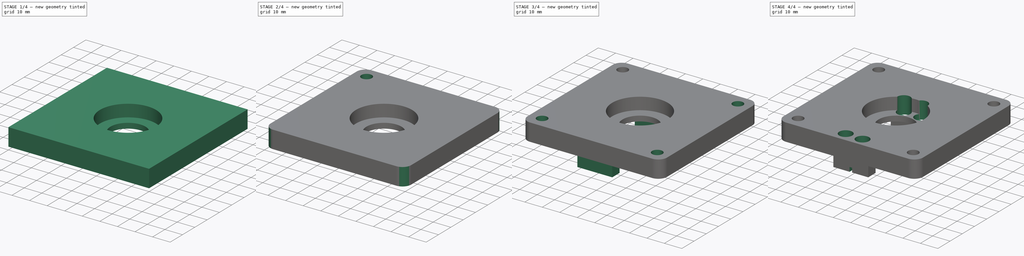
[diagram: build sequence overview — one tinted view per stage of 4, left to right]
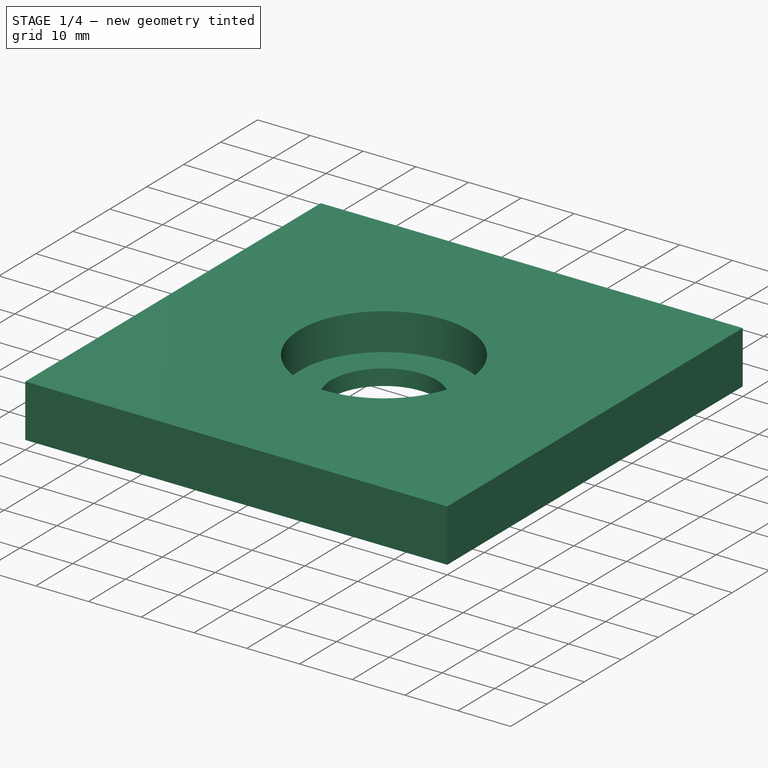
[diagram: stage 1 of 4 — iso view after this stage's code; geometry added in this stage tinted green]
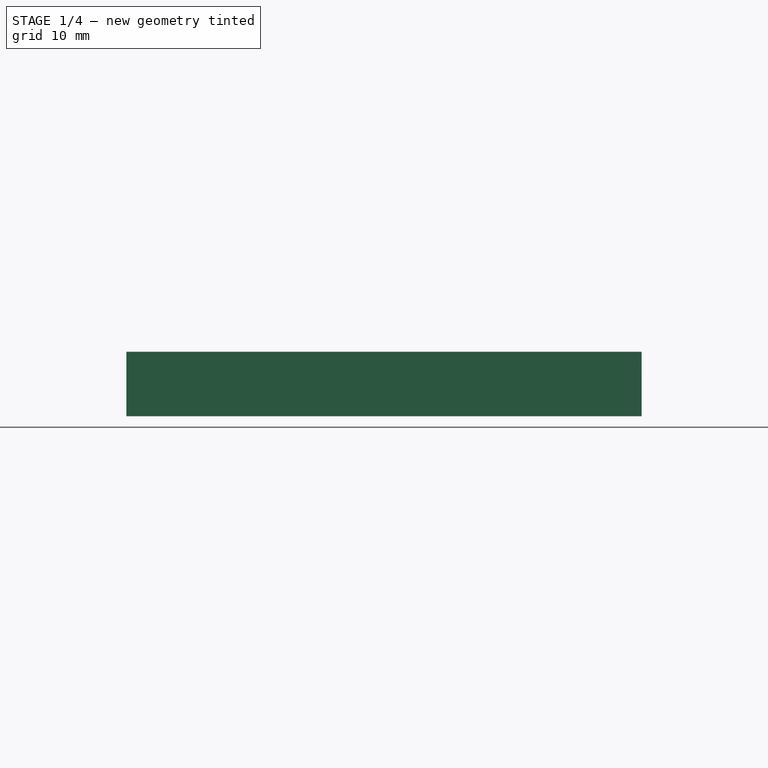
[diagram: stage 1 of 4 — front view after this stage's code; geometry added in this stage tinted green]
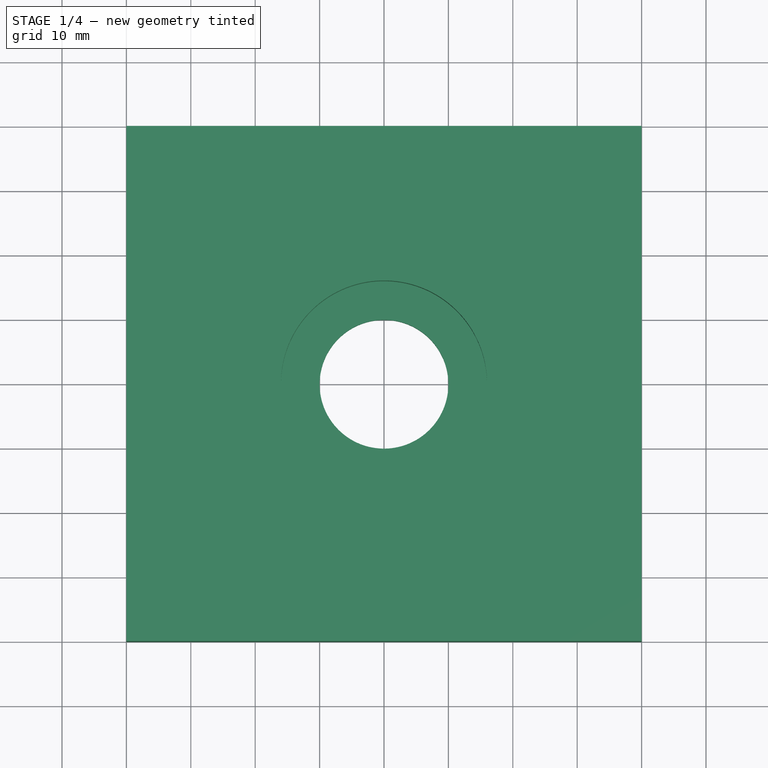
[diagram: stage 1 of 4 — top view after this stage's code; geometry added in this stage tinted green]
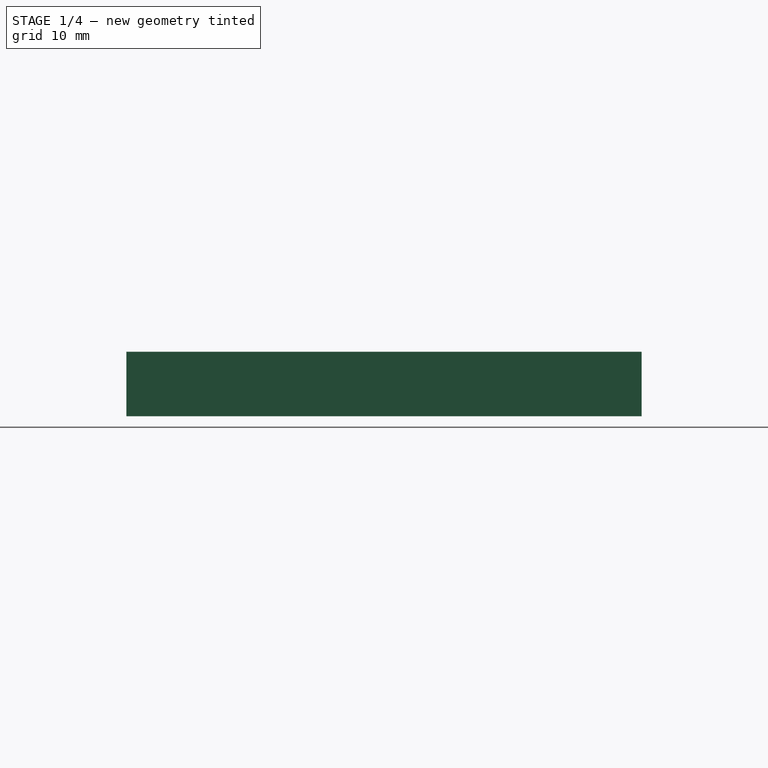
[diagram: stage 1 of 4 — right view after this stage's code; geometry added in this stage tinted green]
FCSTD DOCUMENT  (FreeCAD 2023.1102R14555 (Git shallow))
Label: Base_Plate
License: All rights reserved
LicenseURL: https://en.wikipedia.org/wiki/All_rights_reserved
objects: App::FeaturePython×10, Sketcher::SketchObject×8, PartDesign::Pocket×7, Part::FeaturePython×7, PartDesign::Pad×2, PartDesign::Mirrored×2, App::Link×2, PartDesign::Fillet×1, PartDesign::SubShapeBinder×1, Part::SubShapeBinder×1, PartDesign::Plane×1, PartDesign::Body×1, App::Part×1
note: 62 computed .brp shape members not serialized (recipe doc carries the construction recipe); baked Part::Feature solids carry a one-line shape summary decoded from their .brp
EXTERNAL_REF file=Ball_Bearing.FCStd obj=Part
EXTERNAL_REF file=Hitec_D625NW.FCStd obj=Part

FEATURE [Sketcher::SketchObject] Sketch
  ArcFitTolerance = 1e-06
  AttachmentSupport = -> [XY_Plane]
  ExternalBSplineMaxDegree = 5
  ExternalBSplineTolerance = 0.0001
  FullyConstrained = true
  InternalTolerance = 1e-06
  InvalidShape = false
  MakeInternals = false
  MapMode = 5
  Support = -> [XY_Plane]
  TreeRank = 18
  ValidateShape = false
  sketch-geometry (5):
    g0: LineSegment StartX=-40 StartY=-40 StartZ=0 EndX=-40 EndY=40 EndZ=0
    g1: LineSegment StartX=-40 StartY=40 StartZ=0 EndX=40 EndY=40 EndZ=0
    g2: LineSegment StartX=40 StartY=40 StartZ=0 EndX=40 EndY=-40 EndZ=0
    g3: LineSegment StartX=40 StartY=-40 StartZ=0 EndX=-40 EndY=-40 EndZ=0
    g4: GeomPoint [constr] X=0 Y=0 Z=0
  constraints (12):
    c: Coincident(g0,g1)
    c: Coincident(g1,g2)
    c: Coincident(g2,g3)
    c: Coincident(g3,g0)
    c: Horizontal(g1)
    c: Horizontal(g3)
    c: Vertical(g0)
    c: Vertical(g2)
    c: Symmetric(g1,g0,g4)
    c: Coincident(g4,g-1)
    c: Distance(g1) = 80
    c: Equal(g2,g1)
FEATURE [PartDesign::Pad] Pad
  AddSubType = 0
  AlongSketchNormal = false
  AutoTaperInnerAngle = true
  CheckUpToFaceLimits = true
  ClaimChildren = false
  Direction = (0,0,1)
  Fit = 0
  FitJoin = 0
  InnerFit = 0
  InnerFitJoin = 0
  InvalidShape = false
  Length = 10
  Length2 = 10
  Linearize = true
  NewSolid = false
  Profile = -> Sketch
  ReferenceAxis = -> Sketch [N_Axis]
  Refine = true
  Suppress = false
  TaperInnerAngle = 0
  TaperInnerAngleRev = 0
  TreeRank = 19
  Type = 0
  ValidateShape = true
  _ProfileBasedVersion = 1
FEATURE [Sketcher::SketchObject] Sketch001
  ArcFitTolerance = 1e-06
  AttachmentSupport = -> [Pad]
  ExternalBSplineMaxDegree = 5
  ExternalBSplineTolerance = 0.0001
  FullyConstrained = true
  InternalTolerance = 1e-06
  InvalidShape = false
  MakeInternals = false
  MapMode = 5
  Placement = pos=(0,0,10) rot=(0,0,1;0rad)
  Support = -> [Pad]
  TreeRank = 20
  ValidateShape = false
  sketch-geometry (2):
    g0: Circle CenterX=0 CenterY=0 CenterZ=0 NormalX=0 NormalY=0 NormalZ=1 AngleXU=0 Radius=10
    g1: Circle CenterX=0 CenterY=0 CenterZ=0 NormalX=0 NormalY=0 NormalZ=1 AngleXU=0 Radius=16
  constraints (4):
    c: Coincident(g0,g-1)
    c: Diameter(g0) = 20
    c: Coincident(g1,g0)
    c: Diameter(g1) = 32
FEATURE [PartDesign::Pocket] Pocket
  AddSubType = 1
  AlongSketchNormal = false
  AutoTaperInnerAngle = true
  BaseFeature = -> Pad
  CheckUpToFaceLimits = true
  ClaimChildren = false
  Direction = (0,0,-1)
  Fit = 0
  FitJoin = 0
  InnerFit = 0
  InnerFitJoin = 0
  InvalidShape = false
  Length = 7
  Length2 = 10
  Linearize = true
  NewSolid = false
  Profile = -> Sketch001 [Edge2]
  ReferenceAxis = -> Sketch001 [N_Axis]
  Refine = true
  Suppress = false
  TaperInnerAngle = 0
  TaperInnerAngleRev = 0
  TreeRank = 21
  Type = 0
  ValidateShape = true
  _ProfileBasedVersion = 1
  _Version = 1
FEATURE [PartDesign::Pocket] Pocket001
  AddSubType = 1
  AlongSketchNormal = false
  AutoTaperInnerAngle = true
  BaseFeature = -> Pocket
  CheckUpToFaceLimits = true
  ClaimChildren = false
  Direction = (0,0,-1)
  Fit = 0
  FitJoin = 0
  InnerFit = 0
  InnerFitJoin = 0
  InvalidShape = false
  Length = 5
  Length2 = 10
  Linearize = true
  NewSolid = false
  Profile = -> Sketch001 [Edge1]
  ReferenceAxis = -> Sketch001 [N_Axis]
  Refine = true
  Suppress = false
  TaperInnerAngle = 0
  TaperInnerAngleRev = 0
  TreeRank = 22
  Type = 1
  ValidateShape = true
  _ProfileBasedVersion = 1
  _Version = 1
FEATURE [Sketcher::SketchObject] Sketch002
  ArcFitTolerance = 0
  AttachmentSupport = -> [XY_Plane]
  ExternalBSplineMaxDegree = 0
  ExternalBSplineTolerance = 0
  ExternalGeometry = -> [Pad001]
  FullyConstrained = true
  InternalTolerance = 1e-06
  InvalidShape = false
  MakeInternals = false
  MapMode = 5
  Support = -> [XY_Plane]
  TreeRank = 0
  ValidateShape = false
  sketch-geometry (2):
    g0: Circle CenterX=0 CenterY=0 CenterZ=0 NormalX=0 NormalY=0 NormalZ=1 AngleXU=0 Radius=12
    g1: Circle CenterX=0 CenterY=0 CenterZ=0 NormalX=0 NormalY=0 NormalZ=1 AngleXU=0 Radius=10
  constraints (4):
    c: Coincident(g0,g-1)
    c: Equal(g0,g-3)
    c: Diameter(g1) = 20
    c: Coincident(g1,g0)
FEATURE [PartDesign::Pad] Pad002
  AddSubType = 0
  AutoTaperInnerAngle = true
  BaseFeature = -> Pad001
  CheckUpToFaceLimits = true
  ClaimChildren = false
  Direction = (0,0,1)
  Fit = 0
  FitJoin = 0
  InnerFit = 0
  InnerFitJoin = 0
  InvalidShape = false
  Length = 7
  Length2 = 10
  Midplane = true
  NewSolid = false
  Profile = -> Sketch002
  ReferenceAxis = -> Sketch002 [N_Axis]
  Suppress = false
  TaperInnerAngle = 0
  TaperInnerAngleRev = 0
  TreeRank = 0
  Type = 0
  ValidateShape = true
  _ProfileBasedVersion = 0
FEATURE [PartDesign::Body] Body
  AutoGroupSolids = false
  ClaimAllChildren = false
  ExportMode = 0
  Group = -> [Sketch,Pad,Sketch001,Pad001,Sketch002,Pad002]
  InvalidShape = false
  Origin = -> Origin
  Tip = -> Pad002
  TreeRank = 0
  ValidateShape = false
  _ExportChildren = -> [Pad,Pad001,Pad002]
  _GroupVersion = 1
FEATURE [App::Part] Part  label="Ball_Bearing"
  ClaimAllChildren = false
  ColoredElements = -> Part [Body.Pad002.Face6,Body.Pad002.Face7]
  ExportMode = 1
  Group = -> [Body]
  Origin = -> Origin001
  TreeRank = 3
  _ExportChildren = -> [Body]
  _GroupVersion = 1
---- part Hitec_D625NW.FCStd = doc fcstd_f27333ed1394 ----
FCSTD DOCUMENT  (FreeCAD 2023.1102R14555 (Git shallow))
Label: Hitec_D625NW
License: All rights reserved
LicenseURL: http://en.wikipedia.org/wiki/All_rights_reserved
objects: Sketcher::SketchObject×3, Part::SubShapeBinder×3, PartDesign::Body×2, PartDesign::SubShapeBinder×1, PartDesign::Pad×1, PartDesign::Hole×1, Part::Feature×1, App::Part×1, PartDesign::Plane×1
note: 20 computed .brp shape members not serialized (recipe doc carries the construction recipe); baked Part::Feature solids carry a one-line shape summary decoded from their .brp

FEATURE [PartDesign::SubShapeBinder] Binder
  BindCopyOnChange = 0
  BindMode = 0
  ClaimChildren = false
  Context = -> Part [Body.Binder.]
  EdgeTolerance = 1e-06
  FillStyle = 0
  Fuse = false
  InvalidShape = false
  MakeFace = true
  MergeEdges = true
  OffsetFill = false
  OffsetIntersection = false
  OffsetJoinType = 0
  OffsetOpenResult = false
  Outline = false
  PartialLoad = false
  Relative = true
  SplitEdges = false
  TightBound = false
  TreeRank = 0
  ValidateShape = false
  _Version = 2
FEATURE [Sketcher::SketchObject] Sketch
  ArcFitTolerance = 0
  AttachmentSupport = -> [Binder]
  ExternalBSplineMaxDegree = 0
  ExternalBSplineTolerance = 0
  ExternalGeometry = -> [Binder]
  FullyConstrained = true
  InternalTolerance = 1e-06
  InvalidShape = false
  MakeInternals = false
  MapMode = 5
  Placement = pos=(0,0,40.55) rot=(0,0,1;0rad)
  Support = -> [Binder]
  TreeRank = 0
  ValidateShape = false
  sketch-geometry (1):
    g0: Circle CenterX=9.5 CenterY=10 CenterZ=0 NormalX=0 NormalY=0 NormalZ=1 AngleXU=0 Radius=2.975
  constraints (2):
    c: Coincident(g0,g-3)
    c: Diameter(g0) = 5.95
FEATURE [PartDesign::Pad] Pad
  AddSubType = 0
  AutoTaperInnerAngle = true
  CheckUpToFaceLimits = true
  ClaimChildren = false
  Direction = (0,0,1)
  Fit = 0
  FitJoin = 0
  InnerFit = 0
  InnerFitJoin = 0
  InvalidShape = false
  Length = 4
  Length2 = 10
  NewSolid = false
  Profile = -> Sketch
  ReferenceAxis = -> Sketch [N_Axis]
  Suppress = false
  TaperInnerAngle = 0
  TaperInnerAngleRev = 0
  TreeRank = 0
  Type = 0
  ValidateShape = true
  _ProfileBasedVersion = 0
FEATURE [PartDesign::Hole] Hole
  AddSubType = 1
  BaseFeature = -> Pad
  ClaimChildren = false
  CustomThreadClearance = 0
  Depth = 18.7875
  DepthType = 0
  Diameter = 3.4
  DrillForDepth = false
  DrillPoint = 1
  DrillPointAngle = 118
  Fit = 0
  FitJoin = 0
  HoleCutCountersinkAngle = 90
  HoleCutCustomValues = false
  HoleCutDepth = 0
  HoleCutDiameter = 6.1
  HoleCutType = 0
  InnerFit = 0
  InnerFitJoin = 0
  InvalidShape = false
  ModelThread = false
  NewSolid = false
  Profile = -> Pad [Face3]
  Suppress = false
  Tapered = false
  TaperedAngle = 90
  ThreadClass = 0
  ThreadDepth = 18.7875
  ThreadDepthType = 0
  ThreadDirection = 0
  ThreadFit = 0
  ThreadSize = 9
  ThreadType = 1
  Threaded = false
  TreeRank = 0
  UseCustomThreadClearance = false
  ValidateShape = true
  _ProfileBasedVersion = 0
FEATURE [PartDesign::Body] Body  label="Root_Gear"
  AutoGroupSolids = false
  ClaimAllChildren = false
  ExportMode = 0
  Group = -> [Binder,Sketch,Pad,Hole]
  InvalidShape = false
  Origin = -> Origin
  Tip = -> Hole
  TreeRank = 80
  ValidateShape = false
  _ExportChildren = -> [Binder,Pad,Hole]
  _GroupVersion = 1
FEATURE [Part::Feature] ShapeCopy  label="Hitec_D625MW001"
  ColoredElements = -> ShapeCopy [Face63,Face64,Face65,Face67,Face68,Face69]
  InvalidShape = false
  TreeRank = 228
  ValidateShape = false
  shape: bbox 53 x 20 x 40.55 mm, 71 faces (baked)
FEATURE [App::Part] Part  label="Hitec_D625NW"
  ClaimAllChildren = false
  ExportMode = 1
  Group = -> [ShapeCopy,Body]
  Origin = -> Origin001
  TreeRank = 81
  _ExportChildren = -> [ShapeCopy,Body]
  _GroupVersion = 1
FEATURE [Part::SubShapeBinder] Import  label="Import(Hitec_D625MW001)"
  BindCopyOnChange = 0
  BindMode = 0
  ClaimChildren = false
  EdgeTolerance = 1e-06
  FillStyle = 0
  Fuse = false
  InvalidShape = false
  MakeFace = false
  MergeEdges = true
  OffsetFill = false
  OffsetIntersection = false
  OffsetJoinType = 0
  OffsetOpenResult = false
  Outline = false
  PartialLoad = false
  Relative = true
  SplitEdges = false
  Support = -> [Part[ShapeCopy.]]
  TightBound = false
  TreeRank = 234
  ValidateShape = false
  _Version = 8
FEATURE [PartDesign::Plane] DatumPlane
  AttachmentSupport = -> [Import]
  InvalidShape = false
  Length = 50
  MapMode = 5
  MinimumLength = 10
  MinimumWidth = 10
  Placement = pos=(0,0,28) rot=(1,0,0;3.14159rad)
  ResizeMode = 0
  Support = -> [Import]
  TreeRank = 233
  ValidateShape = false
  Width = 50
FEATURE [Part::SubShapeBinder] Import001  label="Import001(DatumPlane)"
  BindCopyOnChange = 0
  BindMode = 0
  ClaimChildren = false
  Context = -> Body001 [Import001.]
  EdgeTolerance = 1e-06
  FillStyle = 0
  Fuse = false
  InvalidShape = false
  MakeFace = false
  MergeEdges = true
  OffsetFill = false
  OffsetIntersection = false
  OffsetJoinType = 0
  OffsetOpenResult = false
  Outline = false
  PartialLoad = false
  Relative = true
  SplitEdges = false
  Support = -> [DatumPlane]
  TightBound = false
  TreeRank = 249
  ValidateShape = false
  _Version = 8
FEATURE [Part::SubShapeBinder] Import002  label="Import002(Hitec_D625MW001)"
  BindCopyOnChange = 0
  BindMode = 0
  ClaimChildren = false
  Context = -> Body001 [Import002.]
  EdgeTolerance = 1e-06
  FillStyle = 0
  Fuse = false
  InvalidShape = false
  MakeFace = false
  MergeEdges = true
  OffsetFill = false
  OffsetIntersection = false
  OffsetJoinType = 0
  OffsetOpenResult = false
  Outline = false
  PartialLoad = false
  Relative = true
  SplitEdges = false
  Support = -> [Part[ShapeCopy.]]
  TightBound = false
  TreeRank = 251
  ValidateShape = false
  _Version = 8
FEATURE [Sketcher::SketchObject] Sketch001
  ArcFitTolerance = 1e-06
  AttachmentSupport = -> [Import001]
  ExternalBSplineMaxDegree = 5
  ExternalBSplineTolerance = 0.0001
  ExternalGeometry = -> [Import002]
  FullyConstrained = true
  InternalTolerance = 1e-06
  InvalidShape = false
  MakeInternals = false
  MapMode = 5
  Placement = pos=(0,0,28) rot=(1,0,0;3.14159rad)
  Support = -> [Import001]
  TreeRank = 250
  ValidateShape = false
  constraints (2):
    c: Distance(g-3,g-4) = 10
    c: Distance(g-5,g-6) = 20
FEATURE [Sketcher::SketchObject] Sketch002
  ArcFitTolerance = 1e-06
  AttachmentSupport = -> [XZ_Plane001]
  ExternalBSplineMaxDegree = 5
  ExternalBSplineTolerance = 0.0001
  ExternalGeometry = -> [Import002]
  FullyConstrained = true
  InternalTolerance = 1e-06
  InvalidShape = false
  MakeInternals = false
  MapMode = 5
  Placement = pos=(0,0,0) rot=(1,0,0;1.5708rad)
  Support = -> [XZ_Plane001]
  TreeRank = 252
  ValidateShape = false
  constraints (1):
    c: DistanceY(g-4,g-3) = 38
FEATURE [PartDesign::Body] Body001
  AutoGroupSolids = false
  ClaimAllChildren = false
  ExportMode = 0
  Group = -> [Import001,Sketch001,Import002,Sketch002]
  InvalidShape = false
  Origin = -> Origin002
  TreeRank = 246
  ValidateShape = false
  _ExportChildren = -> [Import001,Sketch001,Import002,Sketch002]
  _GroupVersion = 1
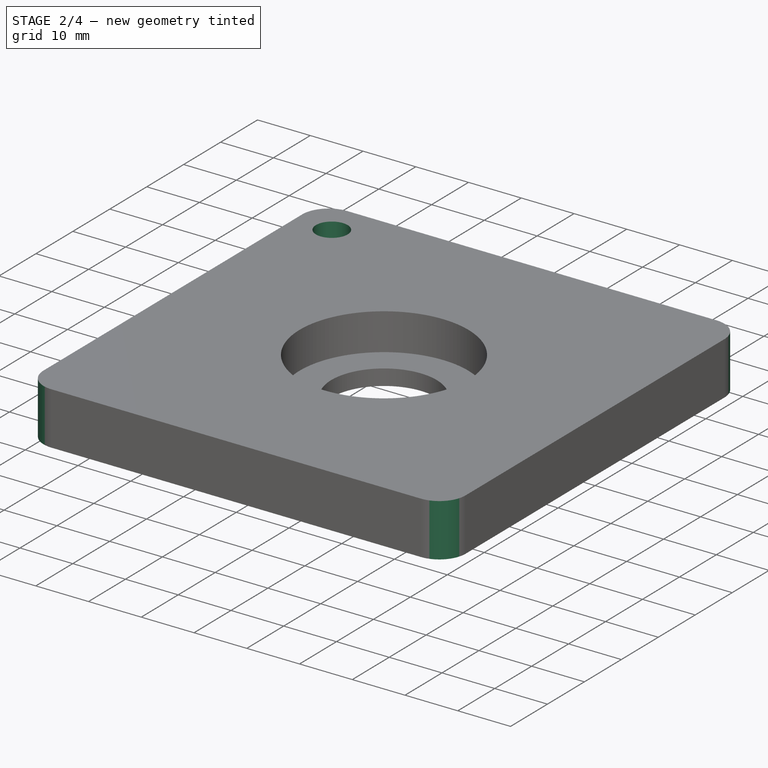
[diagram: stage 2 of 4 — iso view after this stage's code; geometry added in this stage tinted green]
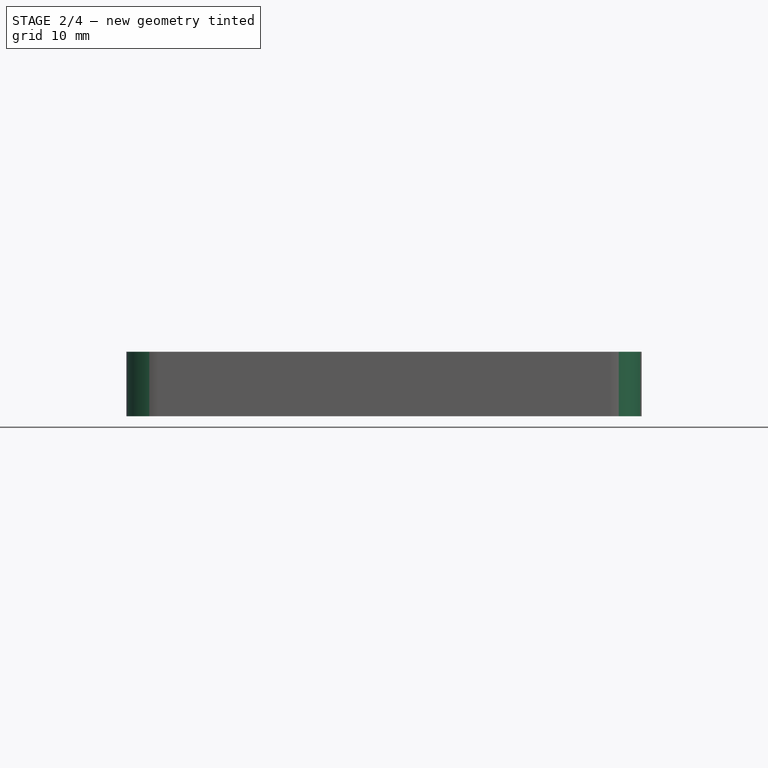
[diagram: stage 2 of 4 — front view after this stage's code; geometry added in this stage tinted green]
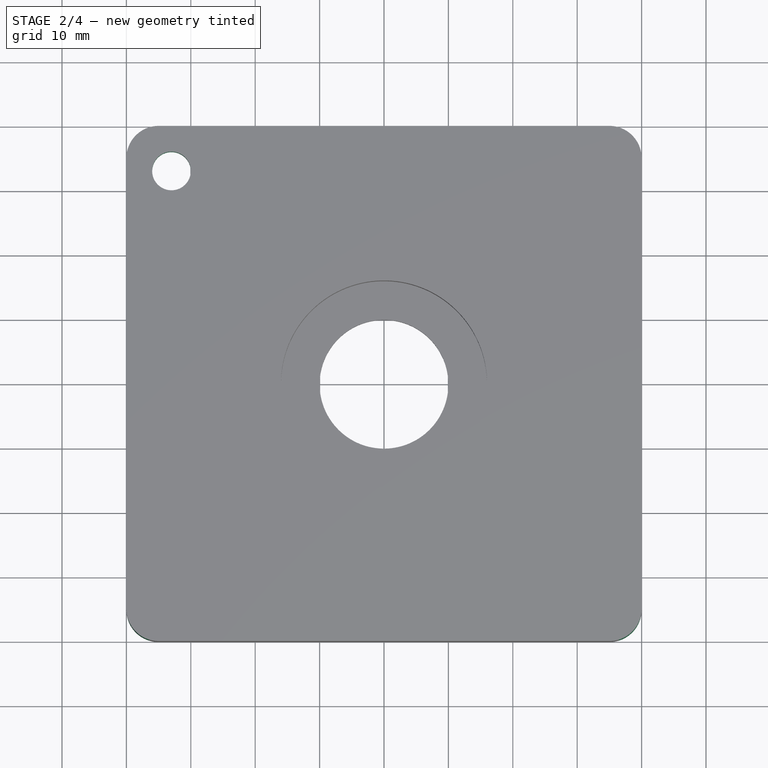
[diagram: stage 2 of 4 — top view after this stage's code; geometry added in this stage tinted green]
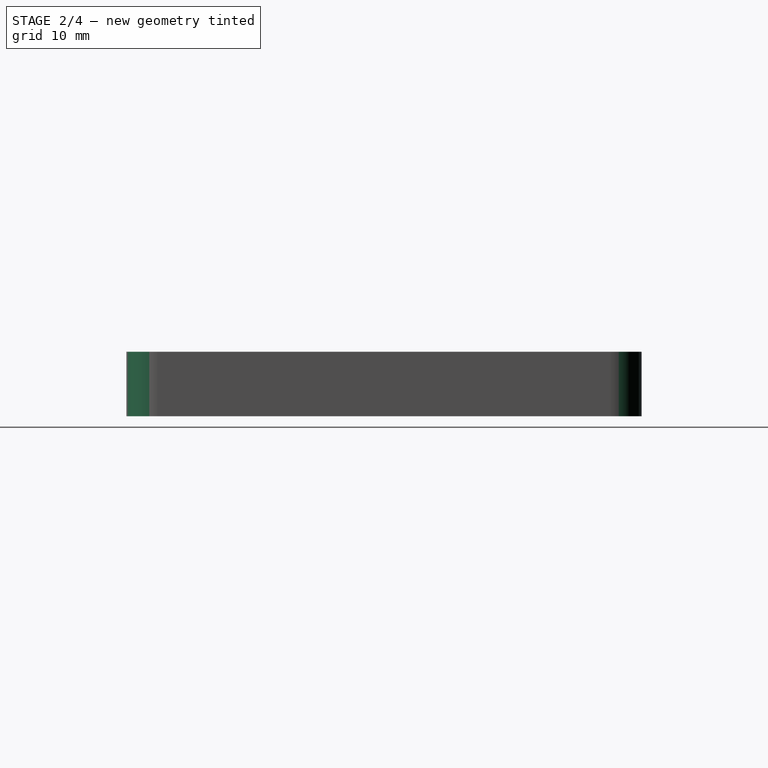
[diagram: stage 2 of 4 — right view after this stage's code; geometry added in this stage tinted green]
FEATURE [PartDesign::Fillet] Fillet
  AddSubType = 0
  Base = -> Pocket001 [Edge1,Edge5,Edge8,Edge2]
  BaseFeature = -> Pocket001
  InvalidShape = false
  NewSolid = false
  Radius = 5
  Refine = true
  SupportTransform = false
  Suppress = false
  TreeRank = 23
  UseAllEdges = false
  ValidateShape = true
FEATURE [Sketcher::SketchObject] Sketch002
  ArcFitTolerance = 1e-06
  AttachmentSupport = -> [Fillet]
  ExternalBSplineMaxDegree = 5
  ExternalBSplineTolerance = 0.0001
  ExternalGeometry = -> [Fillet]
  FullyConstrained = true
  InternalTolerance = 1e-06
  InvalidShape = false
  MakeInternals = false
  MapMode = 5
  Placement = pos=(0,0,10) rot=(0,0,1;0rad)
  Support = -> [Fillet]
  TreeRank = 24
  ValidateShape = false
  sketch-geometry (3):
    g0: Circle CenterX=-33 CenterY=33 CenterZ=0 NormalX=0 NormalY=0 NormalZ=1 AngleXU=0 Radius=3
    g1: LineSegment [constr] StartX=-33 StartY=33 StartZ=0 EndX=-33 EndY=40 EndZ=0
    g2: LineSegment [constr] StartX=-33 StartY=33 StartZ=0 EndX=-40 EndY=33 EndZ=0
  constraints (9):
    c: Diameter(g0) = 6
    c: Coincident(g1,g0)
    c: PointOnObject(g1,g-4)
    c: Vertical(g1)
    c: Coincident(g2,g0)
    c: PointOnObject(g2,g-3)
    c: Horizontal(g2)
    c: Equal(g2,g1)
    c: Distance(g1) = 7
FEATURE [PartDesign::Pocket] Pocket002
  AddSubType = 1
  AlongSketchNormal = false
  AutoTaperInnerAngle = true
  BaseFeature = -> Fillet
  CheckUpToFaceLimits = true
  ClaimChildren = false
  Direction = (0,0,-1)
  Fit = 0
  FitJoin = 0
  InnerFit = 0
  InnerFitJoin = 0
  InvalidShape = false
  Length = 5
  Length2 = 10
  Linearize = true
  NewSolid = false
  Profile = -> Sketch002 [Edge1]
  ReferenceAxis = -> Sketch002 [N_Axis]
  Refine = true
  Suppress = false
  TaperInnerAngle = 0
  TaperInnerAngleRev = 0
  TreeRank = 25
  Type = 1
  ValidateShape = true
  _ProfileBasedVersion = 1
  _Version = 1
FEATURE [Sketcher::SketchObject] Sketch003
  ArcFitTolerance = 1e-06
  AttachmentSupport = -> [Pocket002]
  ExternalBSplineMaxDegree = 5
  ExternalBSplineTolerance = 0.0001
  ExternalGeometry = -> [Pocket002]
  FullyConstrained = true
  InternalTolerance = 1e-06
  InvalidShape = false
  MakeInternals = false
  MapMode = 5
  Placement = pos=(0,0,0) rot=(1,0,0;3.14159rad)
  Support = -> [Pocket002]
  TreeRank = 26
  ValidateShape = false
  sketch-geometry (7):
    g0: LineSegment StartX=-30.5 StartY=-28.6699 StartZ=0 EndX=-35.5 EndY=-28.6699 EndZ=0
    g1: LineSegment StartX=-35.5 StartY=-28.6699 StartZ=0 EndX=-38 EndY=-33 EndZ=0
    g2: LineSegment StartX=-38 StartY=-33 StartZ=0 EndX=-35.5 EndY=-37.3301 EndZ=0
    g3: LineSegment StartX=-35.5 StartY=-37.3301 StartZ=0 EndX=-30.5 EndY=-37.3301 EndZ=0
    g4: LineSegment StartX=-30.5 StartY=-37.3301 StartZ=0 EndX=-28 EndY=-33 EndZ=0
    g5: LineSegment StartX=-28 StartY=-33 StartZ=0 EndX=-30.5 EndY=-28.6699 EndZ=0
    g6: Circle [constr] CenterX=-33 CenterY=-33 CenterZ=0 NormalX=0 NormalY=0 NormalZ=1 AngleXU=0 Radius=5
  constraints (16):
    c: Coincident(g0,g1)
    c: Coincident(g1,g2)
    c: Coincident(g2,g3)
    c: Coincident(g3,g4)
    c: Coincident(g4,g5)
    c: Coincident(g5,g0)
    c: Equal(g0, g1-g5) x5
    c: PointOnObject(g0,g6)
    c: PointOnObject(g1,g6)
    c: PointOnObject(g2,g6)
    c: PointOnObject(g3,g6)
    c: PointOnObject(g4,g6)
    c: PointOnObject(g5,g6)
    c: Coincident(g6,g-3)
    c: Horizontal(g0)
    c: Diameter(g6) = 10
FEATURE [PartDesign::Pocket] Pocket003
  AddSubType = 1
  AlongSketchNormal = false
  AutoTaperInnerAngle = true
  BaseFeature = -> Pocket002
  CheckUpToFaceLimits = true
  ClaimChildren = false
  Direction = (0,0,1)
  Fit = 0
  FitJoin = 0
  InnerFit = 0
  InnerFitJoin = 0
  InvalidShape = false
  Length = 5
  Length2 = 10
  Linearize = true
  NewSolid = false
  Profile = -> Sketch003
  ReferenceAxis = -> Sketch003 [N_Axis]
  Refine = true
  Suppress = false
  TaperInnerAngle = 0
  TaperInnerAngleRev = 0
  TreeRank = 27
  Type = 0
  ValidateShape = true
  _ProfileBasedVersion = 1
  _Version = 1
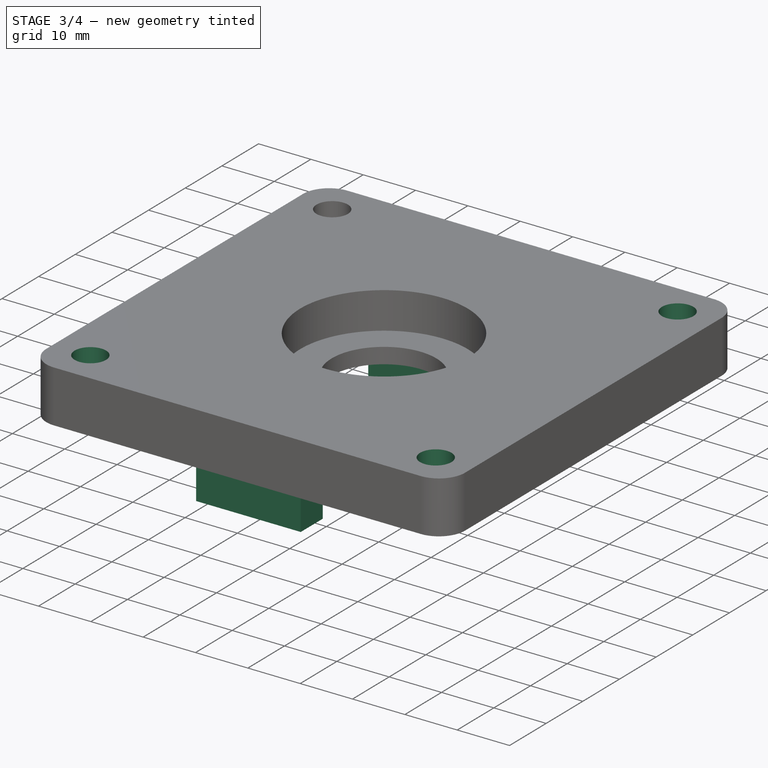
[diagram: stage 3 of 4 — iso view after this stage's code; geometry added in this stage tinted green]
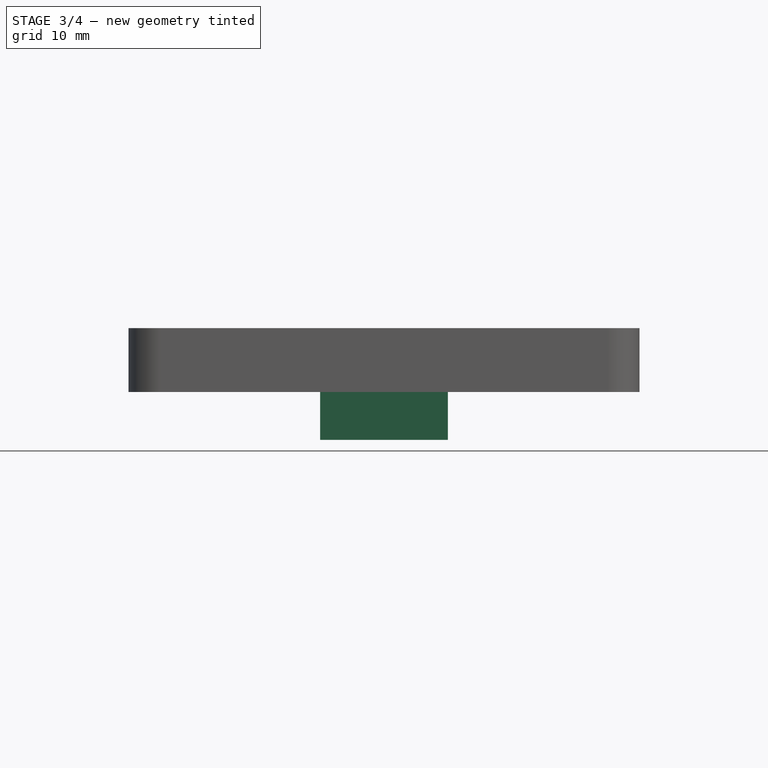
[diagram: stage 3 of 4 — front view after this stage's code; geometry added in this stage tinted green]
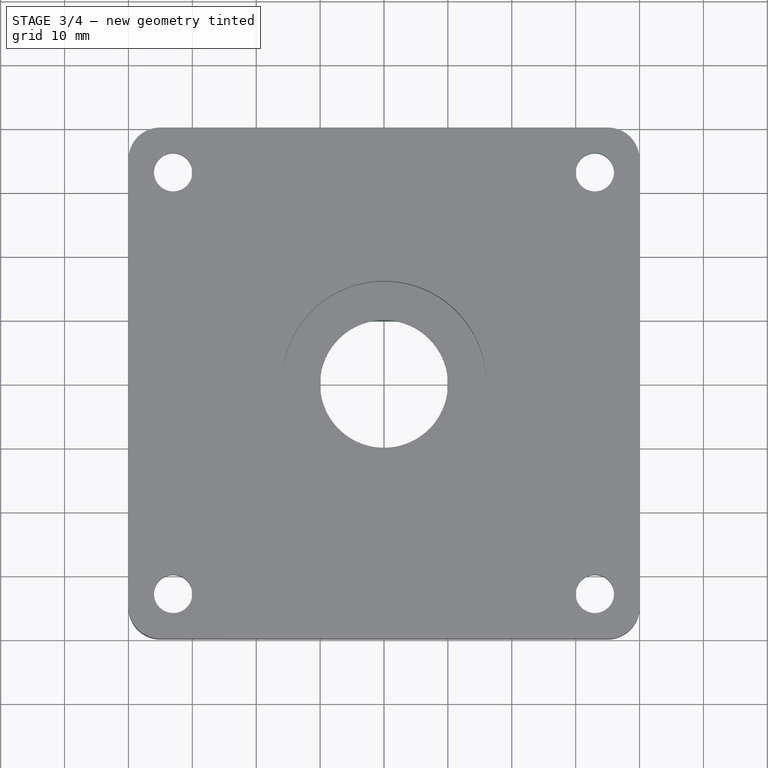
[diagram: stage 3 of 4 — top view after this stage's code; geometry added in this stage tinted green]
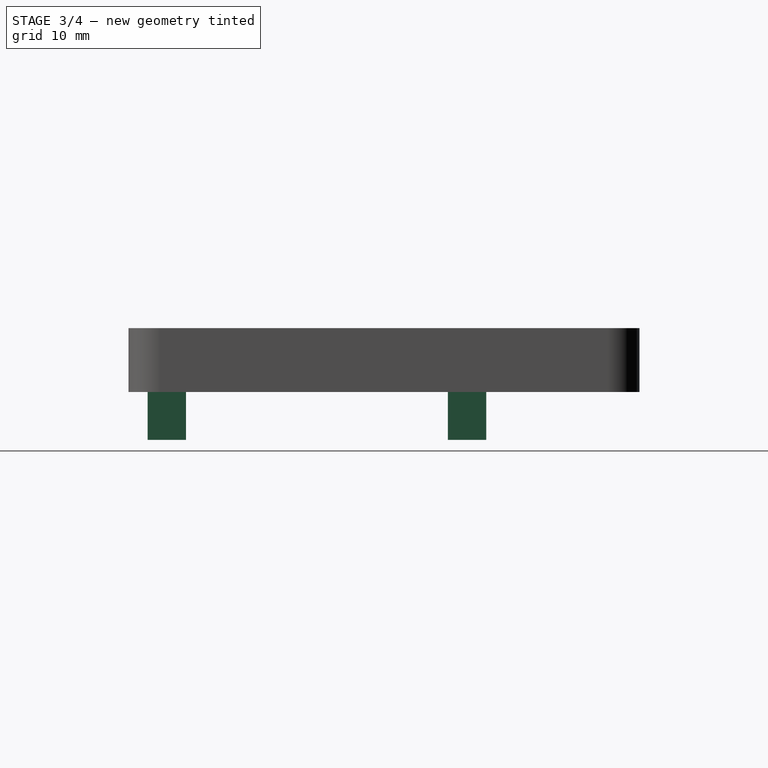
[diagram: stage 3 of 4 — right view after this stage's code; geometry added in this stage tinted green]
FEATURE [PartDesign::Mirrored] Mirrored
  AddSubType = 0
  BaseFeature = -> Pocket003
  CopyShape = false
  InvalidShape = false
  MirrorPlane = -> Sketch003 [V_Axis]
  NewSolid = false
  OriginalSubs = -> [Pocket003,Pocket002]
  Originals = -> [Pocket003,Pocket002]
  ParallelTransform = true
  Refine = true
  SubTransform = true
  Suppress = false
  TreeRank = 28
  ValidateShape = true
  _Version = 3
FEATURE [PartDesign::Mirrored] Mirrored001
  AddSubType = 0
  BaseFeature = -> Mirrored
  CopyShape = false
  InvalidShape = false
  MirrorPlane = -> XZ_Plane
  NewSolid = false
  OriginalSubs = -> [Mirrored,Pocket003,Pocket002]
  Originals = -> [Mirrored,Pocket003,Pocket002]
  ParallelTransform = true
  Refine = true
  SubTransform = true
  Suppress = false
  TreeRank = 29
  ValidateShape = true
  _Version = 3
FEATURE [PartDesign::Body] Body
  AutoGroupSolids = false
  ClaimAllChildren = false
  ExportMode = 0
  Group = -> [Sketch,Pad,Sketch001,Pocket,Pocket001,Fillet,Sketch002,Pocket002,Sketch003,Pocket003,Mirrored,Mirrored001,Sketch004,Import,Pad001,DatumPlane,Sketch005,Pocket004,Sketch006,Pocket005,Sketch007,Pocket006]
  InvalidShape = false
  Origin = -> Origin001
  Tip = -> Pocket006
  TreeRank = 17
  ValidateShape = false
  _ExportChildren = -> [Pad,Pocket,Pocket001,Fillet,Pocket002,Pocket003,Mirrored,Mirrored001,Import,Pad001,DatumPlane,Pocket004,Pocket005,Pocket006]
  _GroupVersion = 1
FEATURE [App::Part] Part  label="Base_Plate"
  ClaimAllChildren = false
  ExportMode = 1
  Group = -> [Body]
  Origin = -> Origin
  TreeRank = 35
  _ExportChildren = -> [Body]
  _GroupVersion = 1
FEATURE [Part::FeaturePython] Parts  # WARN: FeaturePython — macro-defined, semantics opaque (R4)
  Group = -> [Link001,Link002,Part]
  GroupMode = 0
  InvalidShape = false
  TreeRank = 39
  ValidateShape = false
  _LinkVersion = 1
FEATURE [Part::FeaturePython] Assembly  # WARN: FeaturePython — macro-defined, semantics opaque (R4)
  AutoRelax = true
  BuildShape = 0
  Freeze = false
  Group = -> [Constraints,Elements,Parts]
  InvalidShape = false
  TreeRank = 40
  ValidateShape = false
  Verbose = false
  _LinkVersion = 1
  _SolverType = 1
  _Version = 1
FEATURE [App::FeaturePython] Constraints  # WARN: FeaturePython — macro-defined, semantics opaque (R4)
  Group = -> [Constraint,Constraint001,Constraint002]
  TreeRank = 37
  _LinkVersion = 1
  _Version = 1
FEATURE [App::FeaturePython] Elements  # WARN: FeaturePython — macro-defined, semantics opaque (R4)
  Group = -> [_Element,_Element001,_Element002,_Element003,_Element004]
  TreeRank = 38
  _LinkVersion = 1
FEATURE [App::FeaturePython] Constraint  label="Locked"  # WARN: FeaturePython — macro-defined, semantics opaque (R4)
  Disabled = false
  Group = -> [ElementLink]
  TreeRank = 47
  _ConstraintType = 0
  _LinkVersion = 1
  _Parent = -> Constraints
FEATURE [App::FeaturePython] ElementLink  label="_Element"  # link proxy (typed FeaturePython)
  LinkTransform = true
  LinkedObject = -> _Element
  TreeRank = 45
  _LinkVersion = 1
  _Parent = -> Constraint
FEATURE [Part::FeaturePython] _Element  # link proxy (typed FeaturePython)
  Detach = false
  InvalidShape = false
  LinkTransform = true
  LinkedObject = -> Part [Body.Mirrored001.Face2]
  TreeRank = 48
  ValidateShape = false
  _LinkVersion = 1
  _Parent = -> Elements
FEATURE [App::FeaturePython] Constraint001  label="Attachment"  # WARN: FeaturePython — macro-defined, semantics opaque (R4)
  Cascade = false
  Disabled = false
  Group = -> [ElementLink001,ElementLink002]
  Multiply = false
  TreeRank = 54
  _ConstraintType = 45
  _LinkVersion = 1
  _Parent = -> Constraints
FEATURE [App::FeaturePython] ElementLink001  label="_Element001"  # link proxy (typed FeaturePython)
  LinkTransform = true
  LinkedObject = -> _Element001
  TreeRank = 50
  _LinkVersion = 1
  _Parent = -> Constraint001
FEATURE [Part::FeaturePython] _Element001  # link proxy (typed FeaturePython)
  Detach = false
  InvalidShape = false
  LinkTransform = true
  LinkedObject = -> Part [Body.Mirrored001.Face44]
  TreeRank = 55
  ValidateShape = false
  _LinkVersion = 1
  _Parent = -> Elements
FEATURE [App::FeaturePython] ElementLink002  label="_Element002"  # link proxy (typed FeaturePython)
  LinkTransform = true
  LinkedObject = -> _Element002
  TreeRank = 52
  _LinkVersion = 1
  _Parent = -> Constraint001
FEATURE [Part::FeaturePython] _Element002  # link proxy (typed FeaturePython)
  Detach = false
  InvalidShape = false
  LinkTransform = true
  LinkedObject = -> Link001 [Body.Pad002.Face2]
  TreeRank = 56
  ValidateShape = false
  _LinkVersion = 1
  _Parent = -> Elements
FEATURE [App::FeaturePython] Constraint002  label="PlaneCoincident"  # WARN: FeaturePython — macro-defined, semantics opaque (R4)
  Angle = 0
  AnglePitch = 0
  AngleRoll = 0
  Cascade = false
  Disabled = false
  Group = -> [ElementLink003,ElementLink004]
  LockAngle = true
  Multiply = false
  OffsetX = 0
  OffsetY = 0
  TreeRank = 62
  _ConstraintType = 35
  _LinkVersion = 1
  _Parent = -> Constraints
FEATURE [App::FeaturePython] ElementLink003  label="_Element003"  # link proxy (typed FeaturePython)
  LinkTransform = true
  LinkedObject = -> _Element003
  TreeRank = 58
  _LinkVersion = 1
  _Parent = -> Constraint002
FEATURE [Part::FeaturePython] _Element003  # link proxy (typed FeaturePython)
  Detach = false
  InvalidShape = false
  LinkTransform = true
  LinkedObject = -> Link002 [ShapeCopy.Edge152]
  TreeRank = 63
  ValidateShape = false
  _LinkVersion = 1
  _Parent = -> Elements
FEATURE [App::FeaturePython] ElementLink004  label="_Element004"  # link proxy (typed FeaturePython)
  LinkTransform = true
  LinkedObject = -> _Element004
  TreeRank = 60
  _LinkVersion = 1
  _Parent = -> Constraint002
FEATURE [Part::FeaturePython] _Element004  # link proxy (typed FeaturePython)
  Detach = false
  InvalidShape = false
  LinkTransform = true
  LinkedObject = -> Part [Body.Mirrored001.Edge30]
  TreeRank = 64
  ValidateShape = false
  _LinkVersion = 1
  _Parent = -> Elements

RESOLVED EXTERNAL PARTS (link-assembly join: the EXTERNAL_REF files above that resolve inside this repo's crawl, each included once):
---- part Ball_Bearing.FCStd = doc fcstd_5854227f73c9 ----
FCSTD DOCUMENT  (FreeCAD 2023.1102R14555 (Git shallow))
Label: Ball_Bearing
License: All rights reserved
LicenseURL: http://en.wikipedia.org/wiki/All_rights_reserved
objects: Sketcher::SketchObject×3, PartDesign::Pad×3, PartDesign::Body×1, App::Part×1
note: 16 computed .brp shape members not serialized (recipe doc carries the construction recipe); baked Part::Feature solids carry a one-line shape summary decoded from their .brp

FEATURE [Sketcher::SketchObject] Sketch
  ArcFitTolerance = 0
  AttachmentSupport = -> [XY_Plane]
  ExternalBSplineMaxDegree = 0
  ExternalBSplineTolerance = 0
  FullyConstrained = true
  InternalTolerance = 1e-06
  InvalidShape = false
  MakeInternals = false
  MapMode = 5
  Support = -> [XY_Plane]
  TreeRank = 0
  ValidateShape = false
  sketch-geometry (2):
    g0: Circle CenterX=0 CenterY=0 CenterZ=0 NormalX=0 NormalY=0 NormalZ=1 AngleXU=0 Radius=16
    g1: Circle CenterX=0 CenterY=0 CenterZ=0 NormalX=0 NormalY=0 NormalZ=1 AngleXU=0 Radius=14.5
  constraints (4):
    c: Coincident(g0,g-1)
    c: Diameter(g0) = 32
    c: Coincident(g1,g0)
    c: Diameter(g1) = 29
FEATURE [PartDesign::Pad] Pad
  AddSubType = 0
  AutoTaperInnerAngle = true
  CheckUpToFaceLimits = true
  ClaimChildren = false
  Direction = (0,0,1)
  Fit = 0
  FitJoin = 0
  InnerFit = 0
  InnerFitJoin = 0
  InvalidShape = false
  Length = 7
  Length2 = 10
  Midplane = true
  NewSolid = false
  Profile = -> Sketch
  ReferenceAxis = -> Sketch [N_Axis]
  Suppress = false
  TaperInnerAngle = 0
  TaperInnerAngleRev = 0
  TreeRank = 0
  Type = 0
  ValidateShape = true
  _ProfileBasedVersion = 0
FEATURE [Sketcher::SketchObject] Sketch001
  ArcFitTolerance = 0
  AttachmentSupport = -> [XY_Plane]
  ExternalBSplineMaxDegree = 0
  ExternalBSplineTolerance = 0
  ExternalGeometry = -> [Pad]
  FullyConstrained = true
  InternalTolerance = 1e-06
  InvalidShape = false
  MakeInternals = false
  MapMode = 5
  Support = -> [XY_Plane]
  TreeRank = 0
  ValidateShape = false
  sketch-geometry (2):
    g0: Circle CenterX=0 CenterY=0 CenterZ=0 NormalX=0 NormalY=0 NormalZ=1 AngleXU=0 Radius=14.5
    g1: Circle CenterX=0 CenterY=0 CenterZ=0 NormalX=0 NormalY=0 NormalZ=1 AngleXU=0 Radius=12
  constraints (4):
    c: Equal(g0,g-3)
    c: Coincident(g0,g-3)
    c: Coincident(g1,g0)
    c: Diameter(g1) = 24
FEATURE [PartDesign::Pad] Pad001
  AddSubType = 0
  AutoTaperInnerAngle = true
  BaseFeature = -> Pad
  CheckUpToFaceLimits = true
  ClaimChildren = false
  Direction = (0,0,1)
  Fit = 0
  FitJoin = 0
  InnerFit = 0
  InnerFitJoin = 0
  InvalidShape = false
  Length = 6
  Length2 = 10
  Midplane = true
  NewSolid = false
  Profile = -> Sketch001
  ReferenceAxis = -> Sketch001 [N_Axis]
  Suppress = false
  TaperInnerAngle = 0
  TaperInnerAngleRev = 0
  TreeRank = 0
  Type = 0
  ValidateShape = true
  _ProfileBasedVersion = 0
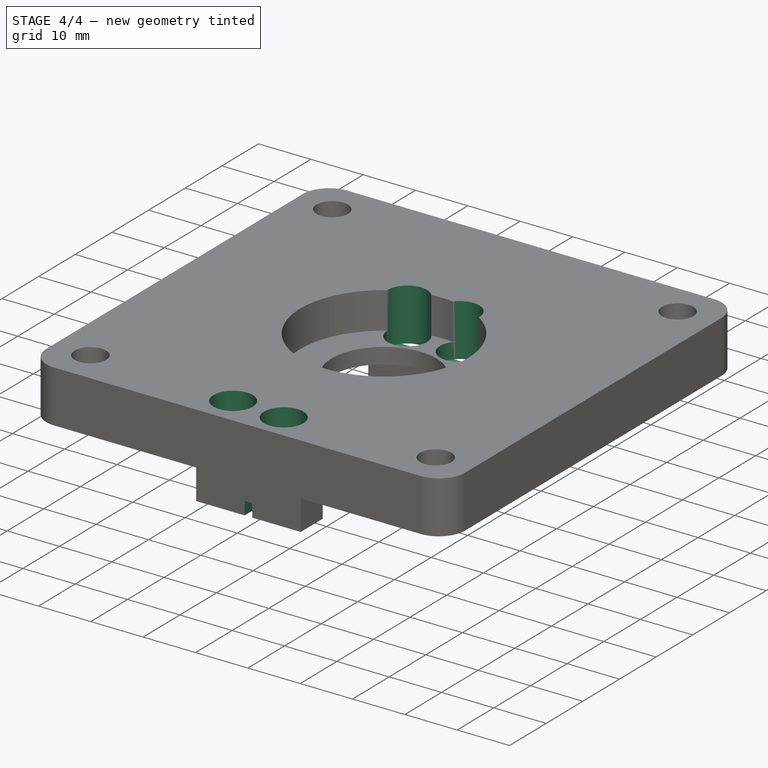
[diagram: stage 4 of 4 — iso view after this stage's code; geometry added in this stage tinted green]
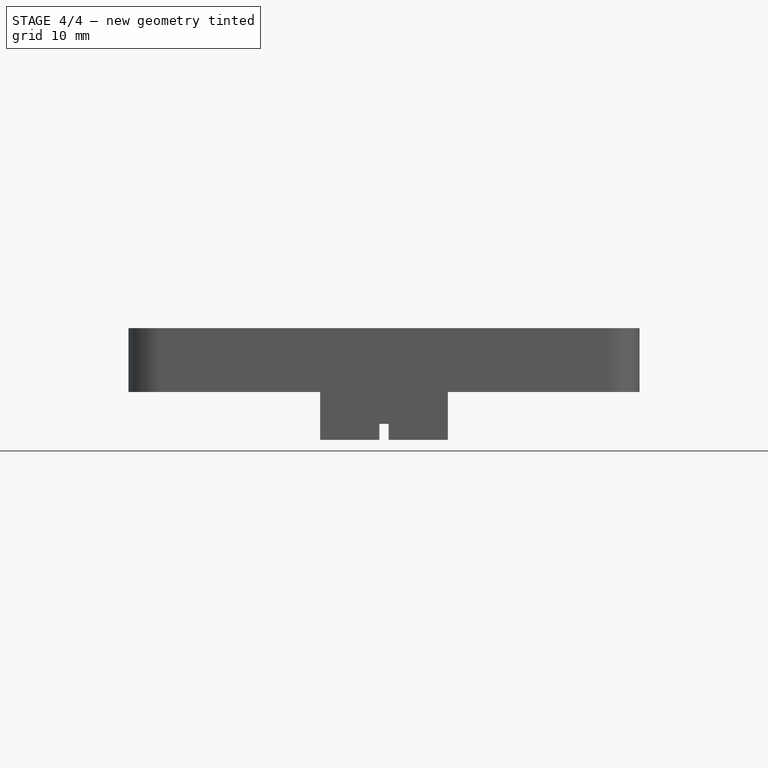
[diagram: stage 4 of 4 — front view after this stage's code; geometry added in this stage tinted green]
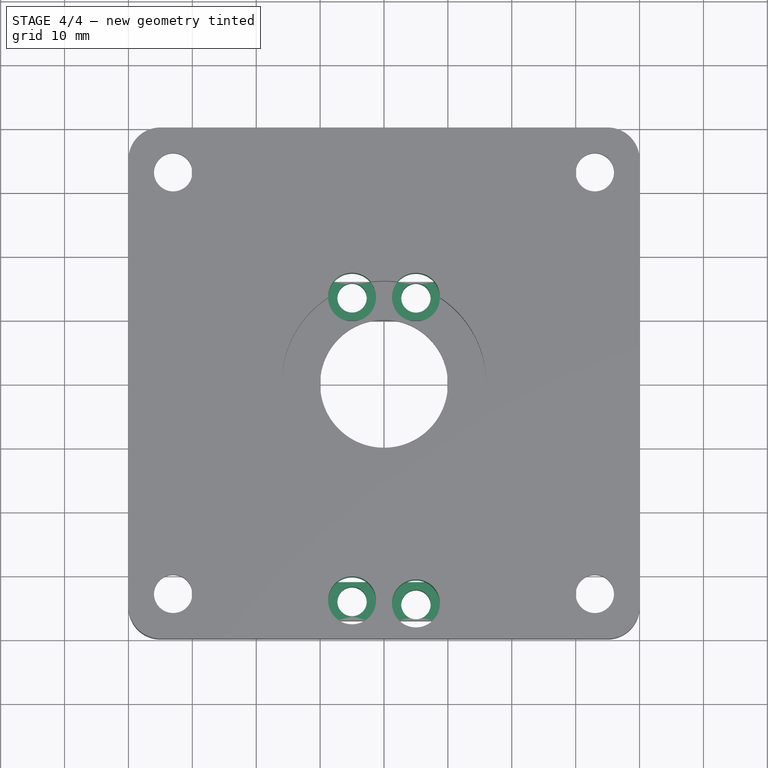
[diagram: stage 4 of 4 — top view after this stage's code; geometry added in this stage tinted green]
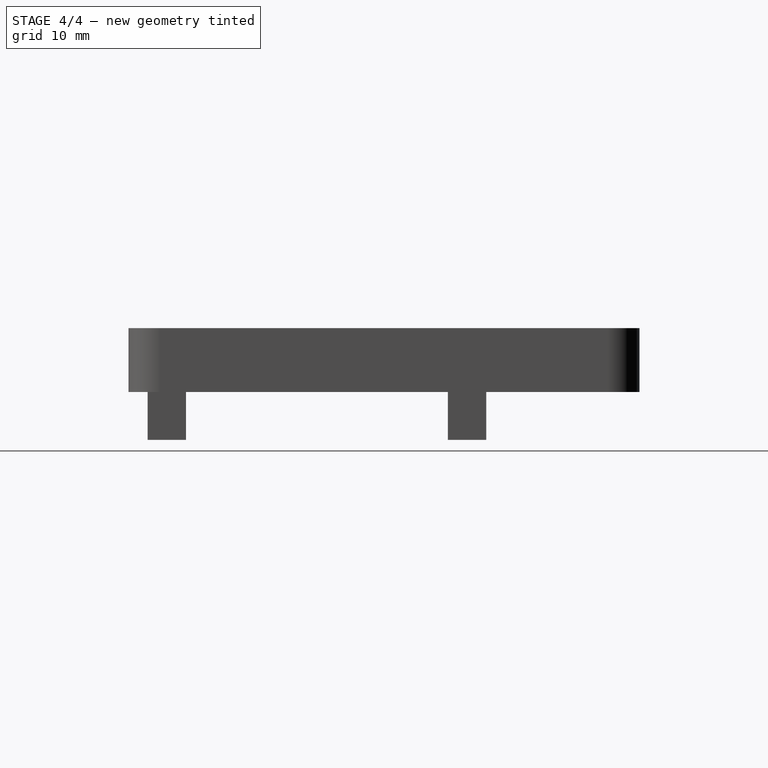
[diagram: stage 4 of 4 — right view after this stage's code; geometry added in this stage tinted green]
FEATURE [App::Link] Link001  label="Link001(Ball_Bearing)"
  AutoLinkLabel = true
  AutoPlacement = true
  LinkPlacement = pos=(0,0,6.5) rot=(0,0,1;0rad)
  LinkedObject = -> <external Ball_Bearing.FCStd>#Part
  Placement = pos=(0,0,6.5) rot=(0,0,1;0rad)
  SyncGroupVisibility = false
  TreeRank = 42
  _LinkVersion = 1
FEATURE [App::Link] Link002  label="Link002(Hitec_D625NW)"
  AutoLinkLabel = true
  AutoPlacement = true
  LinkPlacement = pos=(-10,9.5,-38) rot=(0,0,-1;1.5708rad)
  LinkedObject = -> <external Hitec_D625NW.FCStd>#Part
  Placement = pos=(-10,9.5,-38) rot=(0,0,-1;1.5708rad)
  SyncGroupVisibility = false
  TreeRank = 43
  _LinkVersion = 1
FEATURE [PartDesign::SubShapeBinder] Binder  label="Binder(Hitec_D625MW001)"
  BindCopyOnChange = 0
  BindMode = 0
  ClaimChildren = false
  Context = -> Assembly [Parts.Part.Body.Binder.]
  EdgeTolerance = 1e-06
  FillStyle = 0
  Fuse = false
  InvalidShape = false
  MakeFace = true
  MergeEdges = true
  OffsetFill = false
  OffsetIntersection = false
  OffsetJoinType = 0
  OffsetOpenResult = false
  Outline = false
  PartialLoad = false
  Relative = true
  SplitEdges = false
  Support = -> [Link002[ShapeCopy.]]
  TightBound = false
  TreeRank = 67
  ValidateShape = false
  _Version = 8
FEATURE [Part::SubShapeBinder] Import  label="Import(*Hitec_D625MW001)"
  BindCopyOnChange = 0
  BindMode = 0
  ClaimChildren = false
  Context = -> Assembly [Parts.Part.Body.Import.]
  EdgeTolerance = 1e-06
  FillStyle = 0
  Fuse = false
  InvalidShape = false
  MakeFace = false
  MergeEdges = true
  OffsetFill = false
  OffsetIntersection = false
  OffsetJoinType = 0
  OffsetOpenResult = false
  Outline = false
  PartialLoad = false
  Relative = true
  SplitEdges = false
  Support = -> [Binder]
  TightBound = false
  TreeRank = 68
  ValidateShape = false
  _Version = 8
FEATURE [Sketcher::SketchObject] Sketch004
  ArcFitTolerance = 1e-06
  AttachmentSupport = -> [Mirrored001]
  ExternalBSplineMaxDegree = 5
  ExternalBSplineTolerance = 0.0001
  ExternalGeometry = -> [Import,Mirrored001]
  FullyConstrained = true
  InternalTolerance = 1e-06
  InvalidShape = false
  MakeInternals = false
  MapMode = 5
  Placement = pos=(0,0,0) rot=(1,0,0;3.14159rad)
  Support = -> [Mirrored001]
  TreeRank = 66
  ValidateShape = false
  sketch-geometry (8):
    g0: LineSegment StartX=-10 StartY=37 StartZ=0 EndX=10 EndY=37 EndZ=0
    g1: LineSegment StartX=10 StartY=37 StartZ=0 EndX=10 EndY=31 EndZ=0
    g2: LineSegment StartX=10 StartY=31 StartZ=0 EndX=-10 EndY=31 EndZ=0
    g3: LineSegment StartX=-10 StartY=31 StartZ=0 EndX=-10 EndY=37 EndZ=0
    g4: LineSegment StartX=-10 StartY=-16 StartZ=0 EndX=10 EndY=-16 EndZ=0
    g5: LineSegment StartX=10 StartY=-16 StartZ=0 EndX=10 EndY=-10 EndZ=0
    g6: LineSegment StartX=10 StartY=-10 StartZ=0 EndX=-10 EndY=-10 EndZ=0
    g7: LineSegment StartX=-10 StartY=-10 StartZ=0 EndX=-10 EndY=-16 EndZ=0
  constraints (24):
    c: Coincident(g0,g1)
    c: Coincident(g1,g2)
    c: Coincident(g2,g3)
    c: Coincident(g3,g0)
    c: Horizontal(g0)
    c: Horizontal(g2)
    c: Vertical(g1)
    c: Vertical(g3)
    c: PointOnObject(g-8,g0)
    c: Vertical(g1,g-5)
    c: Vertical(g2,g-4)
    c: Distance(g-3,g2) = 0.5
    c: Coincident(g4,g5)
    c: Coincident(g5,g6)
    c: Coincident(g6,g7)
    c: Coincident(g7,g4)
    c: Horizontal(g4)
    c: Horizontal(g6)
    c: Vertical(g5)
    c: Vertical(g7)
    c: Distance(g-6,g6) = 0.5
    c: PointOnObject(g-7,g4)
    c: Vertical(g6,g-4)
    c: Vertical(g5,g-5)
FEATURE [PartDesign::Pad] Pad001
  AddSubType = 0
  AlongSketchNormal = false
  AutoTaperInnerAngle = true
  BaseFeature = -> Mirrored001
  CheckUpToFaceLimits = true
  ClaimChildren = false
  Direction = (0,0,-1)
  Fit = 0
  FitJoin = 0
  InnerFit = 0
  InnerFitJoin = 0
  InvalidShape = false
  Length = 10
  Length2 = 10
  Linearize = true
  NewSolid = false
  Profile = -> Sketch004
  ReferenceAxis = -> Sketch004 [N_Axis]
  Refine = true
  Suppress = false
  TaperInnerAngle = 0
  TaperInnerAngleRev = 0
  TreeRank = 69
  Type = 3
  UpToFace = -> Import [Face4]
  ValidateShape = true
  _ProfileBasedVersion = 1
FEATURE [PartDesign::Plane] DatumPlane
  AttachmentSupport = -> [Pad001]
  InvalidShape = false
  Length = 80
  MapMode = 45
  MinimumLength = 10
  MinimumWidth = 10
  Placement = pos=(1.02103e-09,-10.5,-7.5) rot=(0,0,1;0rad)
  ResizeMode = 0
  Support = -> [Pad001]
  TreeRank = 70
  ValidateShape = false
  Width = 80
FEATURE [Sketcher::SketchObject] Sketch005
  ArcFitTolerance = 1e-06
  AttachmentSupport = -> [DatumPlane]
  ExternalBSplineMaxDegree = 5
  ExternalBSplineTolerance = 0.0001
  ExternalGeometry = -> [Import,Pad001]
  FullyConstrained = true
  InternalTolerance = 1e-06
  InvalidShape = false
  MakeInternals = false
  MapMode = 5
  Placement = pos=(1.02103e-09,-10.5,-7.5) rot=(0,0,1;0rad)
  Support = -> [DatumPlane]
  TreeRank = 71
  ValidateShape = false
  sketch-geometry (8):
    g0: LineSegment StartX=-0.725 StartY=-26.5 StartZ=0 EndX=0.725 EndY=-26.5 EndZ=0
    g1: LineSegment StartX=0.725 StartY=-26.5 StartZ=0 EndX=0.725 EndY=-20.5 EndZ=0
    g2: LineSegment StartX=0.725 StartY=-20.5 StartZ=0 EndX=-0.725 EndY=-20.5 EndZ=0
    g3: LineSegment StartX=-0.725 StartY=-20.5 StartZ=0 EndX=-0.725 EndY=-26.5 EndZ=0
    g4: LineSegment StartX=-0.725 StartY=20.5 StartZ=0 EndX=0.725 EndY=20.5 EndZ=0
    g5: LineSegment StartX=0.725 StartY=20.5 StartZ=0 EndX=0.725 EndY=26.5 EndZ=0
    g6: LineSegment StartX=0.725 StartY=26.5 StartZ=0 EndX=-0.725 EndY=26.5 EndZ=0
    g7: LineSegment StartX=-0.725 StartY=26.5 StartZ=0 EndX=-0.725 EndY=20.5 EndZ=0
  constraints (22):
    c: Coincident(g0,g1)
    c: Coincident(g1,g2)
    c: Coincident(g2,g3)
    c: Coincident(g3,g0)
    c: Horizontal(g2)
    c: Vertical(g1)
    c: Vertical(g3)
    c: PointOnObject(g0,g-10)
    c: PointOnObject(g1,g-9)
    c: Coincident(g4,g5)
    c: Coincident(g5,g6)
    c: Coincident(g6,g7)
    c: Coincident(g7,g4)
    c: Horizontal(g6)
    c: Vertical(g5)
    c: Vertical(g7)
    c: PointOnObject(g4,g-7)
    c: PointOnObject(g5,g-8)
    c: Symmetric(g4,g4,g-2)
    c: Distance(g-4,g5) = 0.1
    c: Symmetric(g0,g0,g-2)
    c: Distance(g-5,g0) = 0.1
FEATURE [PartDesign::Pocket] Pocket004
  AddSubType = 1
  AlongSketchNormal = false
  AutoTaperInnerAngle = true
  BaseFeature = -> Pad001
  CheckUpToFaceLimits = true
  ClaimChildren = false
  Direction = (0,0,-1)
  Fit = 0
  FitJoin = 0
  InnerFit = 0
  InnerFitJoin = 0
  InvalidShape = false
  Length = 2.5
  Length2 = 10
  Linearize = true
  NewSolid = false
  Profile = -> Sketch005
  ReferenceAxis = -> Sketch005 [N_Axis]
  Refine = true
  Reversed = true
  Suppress = false
  TaperInnerAngle = 0
  TaperInnerAngleRev = 0
  TreeRank = 72
  Type = 0
  ValidateShape = true
  _ProfileBasedVersion = 1
  _Version = 1
FEATURE [Sketcher::SketchObject] Sketch006
  ArcFitTolerance = 1e-06
  AttachmentSupport = -> [Pocket004]
  ExternalBSplineMaxDegree = 5
  ExternalBSplineTolerance = 0.0001
  ExternalGeometry = -> [Import]
  FullyConstrained = true
  InternalTolerance = 1e-06
  InvalidShape = false
  MakeInternals = false
  MapMode = 5
  Placement = pos=(0,0,10) rot=(0,0,1;0rad)
  Support = -> [Pocket004]
  TreeRank = 73
  ValidateShape = false
  sketch-geometry (4):
    g0: Circle CenterX=4.99999 CenterY=13.5 CenterZ=0 NormalX=0 NormalY=0 NormalZ=1 AngleXU=0 Radius=2.3
    g1: Circle CenterX=-5 CenterY=13.5126 CenterZ=0 NormalX=0 NormalY=0 NormalZ=1 AngleXU=0 Radius=2.3
    g2: Circle CenterX=-5 CenterY=-34.0222 CenterZ=0 NormalX=0 NormalY=0 NormalZ=1 AngleXU=0 Radius=2.3
    g3: Circle CenterX=5 CenterY=-34.5 CenterZ=0 NormalX=0 NormalY=0 NormalZ=1 AngleXU=0 Radius=2.3
  constraints (9):
    c: Coincident(g0,g-5)
    c: Coincident(g1,g-6)
    c: Coincident(g2,g-3)
    c: Coincident(g3,g-4)
    c: Equal(g0,g3)
    c: Equal(g3,g2)
    c: Equal(g2,g1)
    c: Radius(g-6) = 2.25
    c: Diameter(g1) = 4.6
FEATURE [PartDesign::Pocket] Pocket005
  AddSubType = 1
  AlongSketchNormal = false
  AutoTaperInnerAngle = true
  BaseFeature = -> Pocket004
  CheckUpToFaceLimits = true
  ClaimChildren = false
  Direction = (0,0,-1)
  Fit = 0
  FitJoin = 0
  InnerFit = 0
  InnerFitJoin = 0
  InvalidShape = false
  Length = 5
  Length2 = 10
  Linearize = true
  NewSolid = false
  Profile = -> Sketch006
  ReferenceAxis = -> Sketch006 [N_Axis]
  Refine = true
  Suppress = false
  TaperInnerAngle = 0
  TaperInnerAngleRev = 0
  TreeRank = 74
  Type = 1
  ValidateShape = true
  _ProfileBasedVersion = 1
  _Version = 1
FEATURE [Sketcher::SketchObject] Sketch007
  ArcFitTolerance = 1e-06
  AttachmentSupport = -> [Pocket005]
  ExternalBSplineMaxDegree = 5
  ExternalBSplineTolerance = 0.0001
  ExternalGeometry = -> [Pocket005]
  FullyConstrained = true
  InternalTolerance = 1e-06
  InvalidShape = false
  MakeInternals = false
  MapMode = 5
  Placement = pos=(0,0,10) rot=(0,0,1;0rad)
  Support = -> [Pocket005]
  TreeRank = 75
  ValidateShape = false
  sketch-geometry (4):
    g0: Circle CenterX=5 CenterY=-34.5 CenterZ=0 NormalX=0 NormalY=0 NormalZ=1 AngleXU=0 Radius=3.75
    g1: Circle CenterX=-5 CenterY=-34.0222 CenterZ=0 NormalX=0 NormalY=0 NormalZ=1 AngleXU=0 Radius=3.75
    g2: Circle CenterX=4.99999 CenterY=13.5 CenterZ=0 NormalX=0 NormalY=0 NormalZ=1 AngleXU=0 Radius=3.75
    g3: Circle CenterX=-5 CenterY=13.5126 CenterZ=0 NormalX=0 NormalY=0 NormalZ=1 AngleXU=0 Radius=3.75
  constraints (8):
    c: Coincident(g0,g-5)
    c: Coincident(g1,g-6)
    c: Coincident(g2,g-3)
    c: Coincident(g3,g-4)
    c: Equal(g0,g1)
    c: Equal(g1,g2)
    c: Equal(g2,g3)
    c: Diameter(g0) = 7.5
FEATURE [PartDesign::Pocket] Pocket006
  AddSubType = 1
  AlongSketchNormal = false
  AutoTaperInnerAngle = true
  BaseFeature = -> Pocket005
  CheckUpToFaceLimits = true
  ClaimChildren = false
  Direction = (0,0,-1)
  Fit = 0
  FitJoin = 0
  InnerFit = 0
  InnerFitJoin = 0
  InvalidShape = false
  Length = 0
  Length2 = 10
  Linearize = true
  NewSolid = false
  Offset = 3
  Profile = -> Sketch007
  ReferenceAxis = -> Sketch007 [N_Axis]
  Refine = true
  Suppress = false
  TaperInnerAngle = 0
  TaperInnerAngleRev = 0
  TreeRank = 76
  Type = 3
  UpToFace = -> Pocket005 [Face61]
  ValidateShape = true
  _ProfileBasedVersion = 1
  _Version = 1
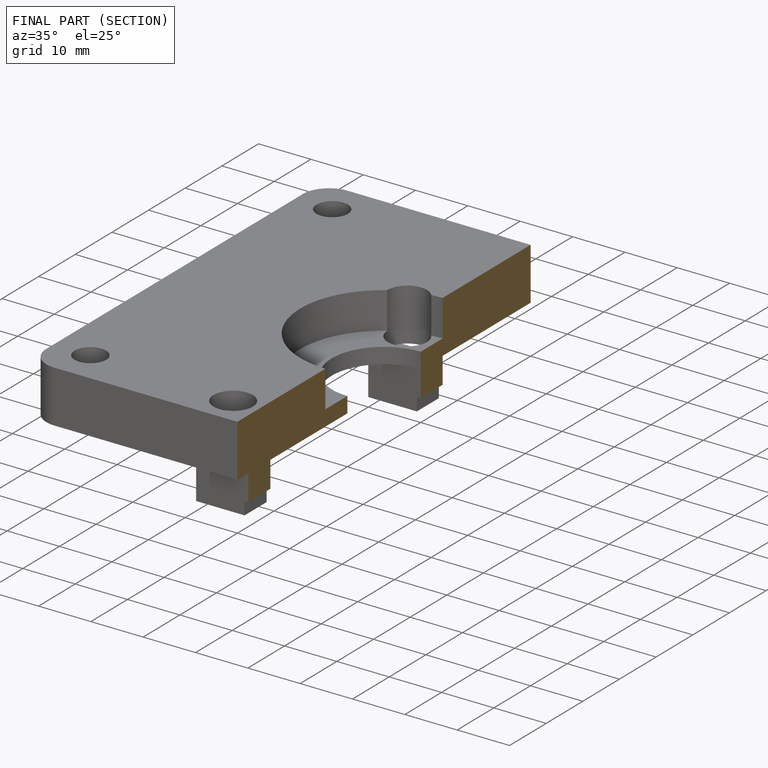
[diagram: finished part — half-section view (interior)]
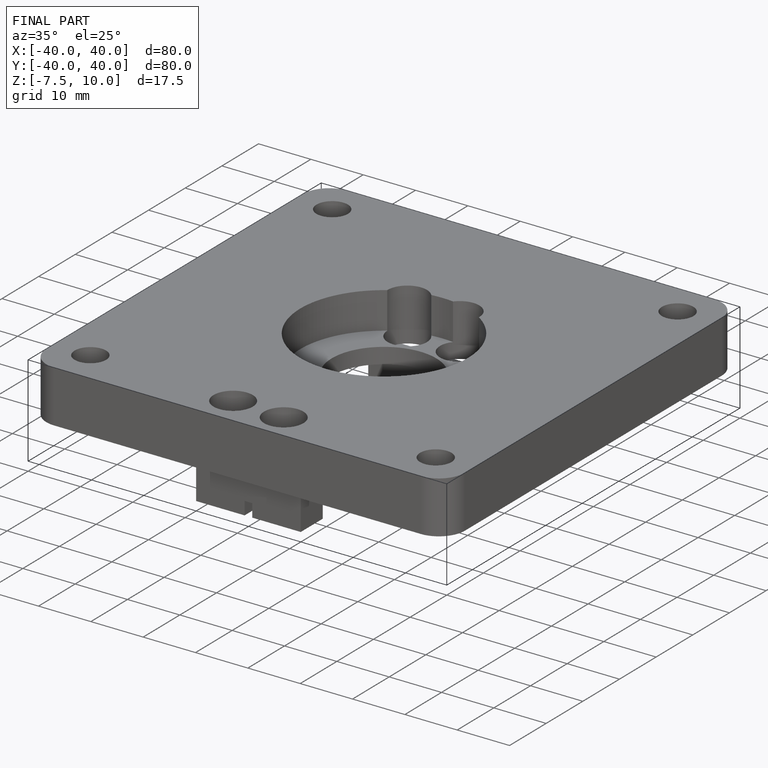
[diagram: finished part — iso view with bounding-box wireframe]
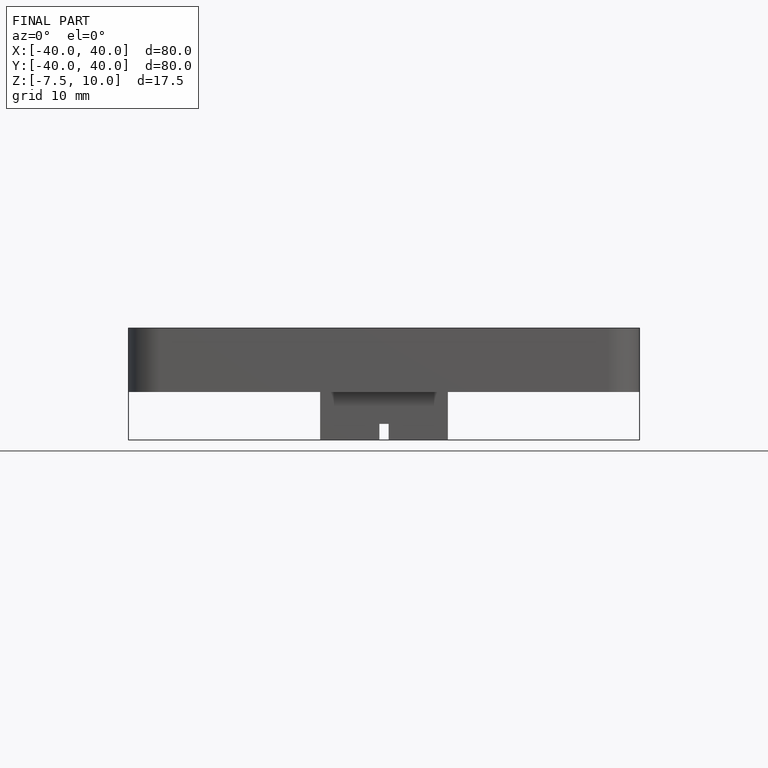
[diagram: finished part — front view with bounding-box wireframe]
